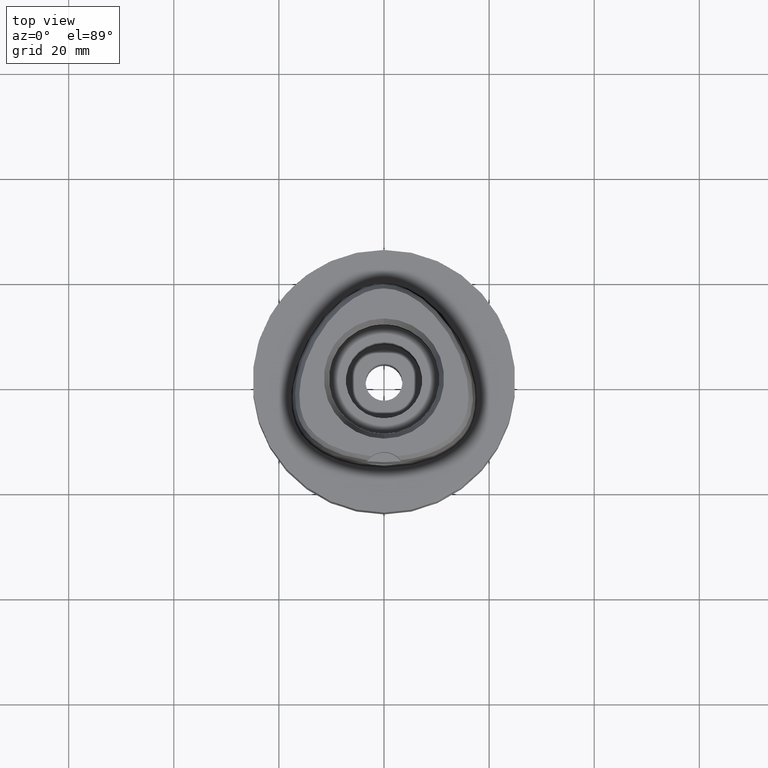
[diagram: clean part render]
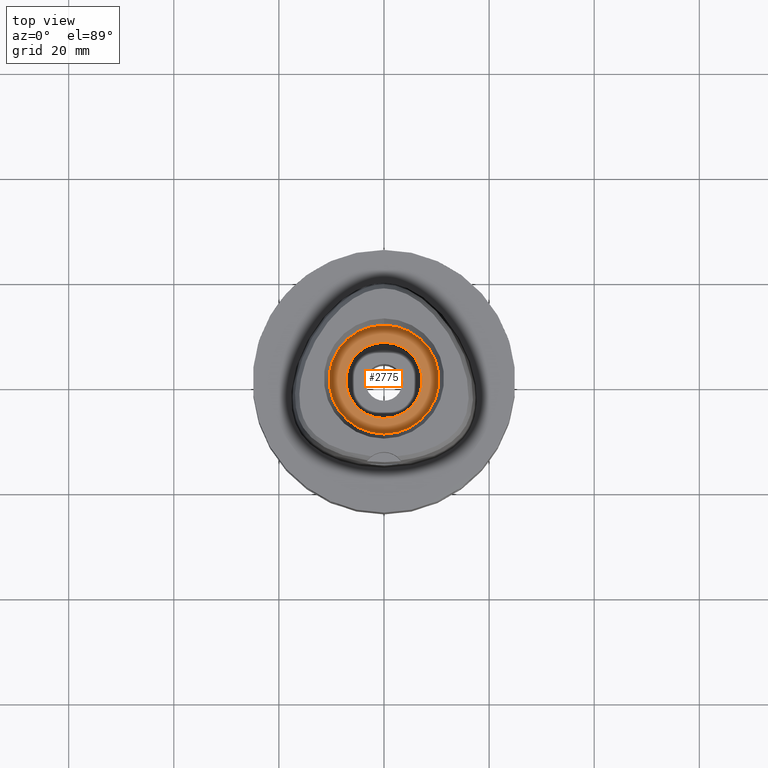
[diagram: same view with one face highlighted and labeled with its STEP entity id]
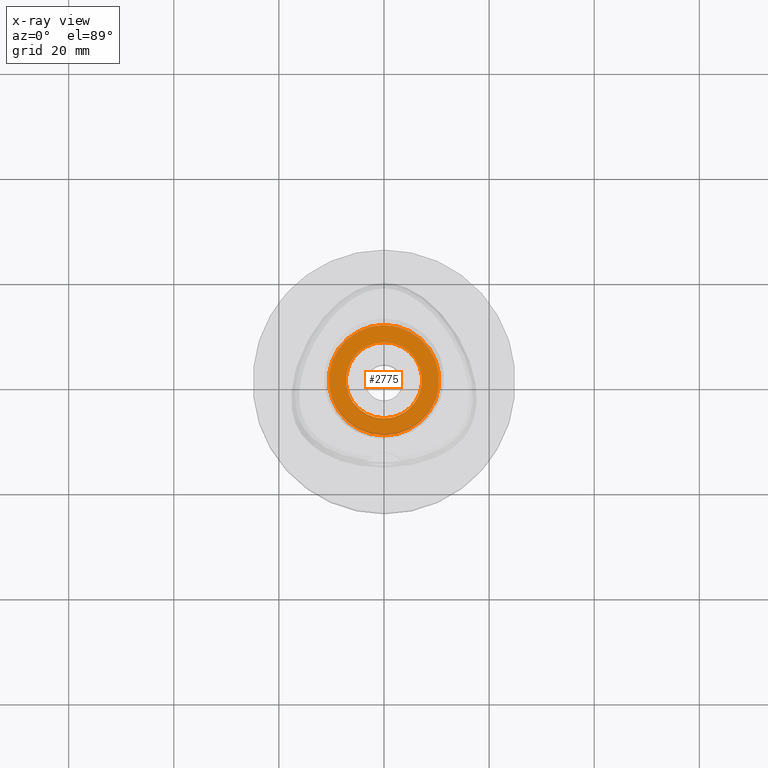
[diagram: x-ray of the same camera — body ghosted, the highlighted face saturated]
A machine part, top view. The second image highlights one B-rep face of the part: STEP entity #2775.
The next image is the same camera in x-ray: the body ghosted, the highlighted face saturated — about 2% of this face is hidden behind the body in this view.
In plain terms, the highlighted planar face has unit normal (0, 0, -1).
Its self-contained STEP definition (entity closure, byte-faithful):
#840=CARTESIAN_POINT('',(0.E0,1.610410540879E-14,1.E1));
#841=DIRECTION('',(0.E0,0.E0,-1.E0));
#842=DIRECTION('',(0.E0,1.E0,0.E0));
#843=AXIS2_PLACEMENT_3D('',#840,#841,#842);
#848=CARTESIAN_POINT('',(0.E0,1.610410540879E-14,1.E1));
#849=DIRECTION('',(0.E0,0.E0,-1.E0));
#850=DIRECTION('',(0.E0,-1.E0,0.E0));
#851=AXIS2_PLACEMENT_3D('',#848,#849,#850);
#856=CARTESIAN_POINT('',(0.E0,1.610410540879E-14,1.E1));
#857=DIRECTION('',(0.E0,0.E0,1.E0));
#858=DIRECTION('',(0.E0,1.E0,0.E0));
#859=AXIS2_PLACEMENT_3D('',#856,#857,#858);
#864=CARTESIAN_POINT('',(0.E0,1.610410540879E-14,1.E1));
#865=DIRECTION('',(0.E0,0.E0,1.E0));
#866=DIRECTION('',(0.E0,-1.E0,0.E0));
#867=AXIS2_PLACEMENT_3D('',#864,#865,#866);
#1654=CARTESIAN_POINT('',(0.E0,7.25E0,1.E1));
#1655=VERTEX_POINT('',#1654);
#1656=CARTESIAN_POINT('',(0.E0,-7.25E0,1.E1));
#1657=VERTEX_POINT('',#1656);
#1658=CARTESIAN_POINT('',(0.E0,1.05E1,1.E1));
#1659=CARTESIAN_POINT('',(0.E0,-1.05E1,1.E1));
#1660=VERTEX_POINT('',#1658);
#1661=VERTEX_POINT('',#1659);
#2760=CARTESIAN_POINT('',(0.E0,1.347111479062E-14,1.E1));
#2761=DIRECTION('',(0.E0,0.E0,-1.E0));
#2762=DIRECTION('',(0.E0,-1.E0,0.E0));
#2763=AXIS2_PLACEMENT_3D('',#2760,#2761,#2762);
#2764=PLANE('',#2763);
#2766=ORIENTED_EDGE('',*,*,#2765,.T.);
#2768=ORIENTED_EDGE('',*,*,#2767,.T.);
#2769=EDGE_LOOP('',(#2766,#2768));
#2770=FACE_OUTER_BOUND('',#2769,.F.);
#2771=ORIENTED_EDGE('',*,*,#2742,.T.);
#2772=ORIENTED_EDGE('',*,*,#2755,.T.);
#2773=EDGE_LOOP('',(#2771,#2772));
#2774=FACE_BOUND('',#2773,.F.);
#844=CIRCLE('',#843,1.05E1);
#852=CIRCLE('',#851,1.05E1);
#860=CIRCLE('',#859,7.25E0);
#868=CIRCLE('',#867,7.25E0);
#2742=EDGE_CURVE('',#1655,#1657,#860,.T.);
#2755=EDGE_CURVE('',#1657,#1655,#868,.T.);
#2765=EDGE_CURVE('',#1660,#1661,#844,.T.);
#2767=EDGE_CURVE('',#1661,#1660,#852,.T.);
#2775=ADVANCED_FACE('',(#2770,#2774),#2764,.F.);